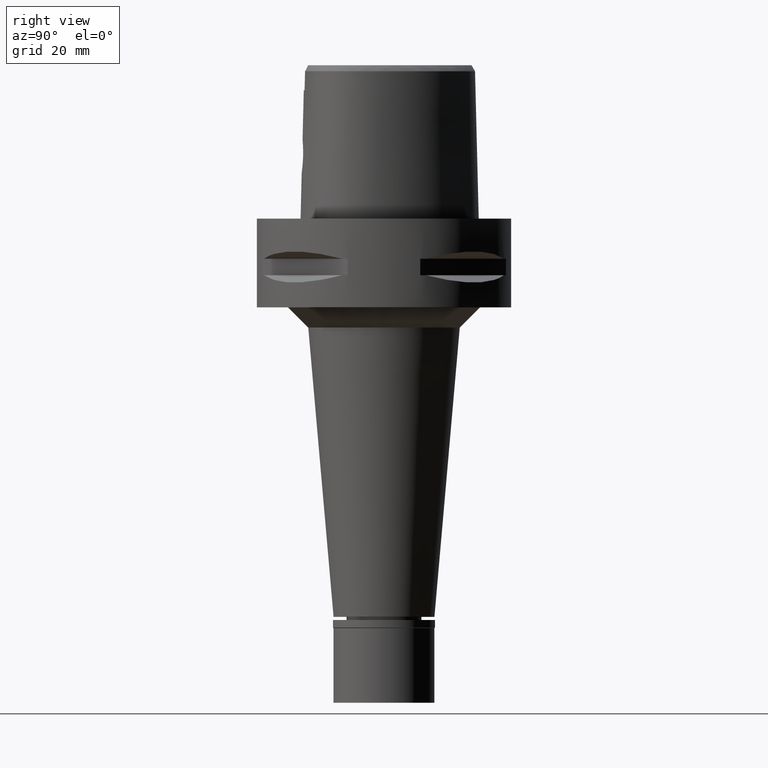
[diagram: clean part render]
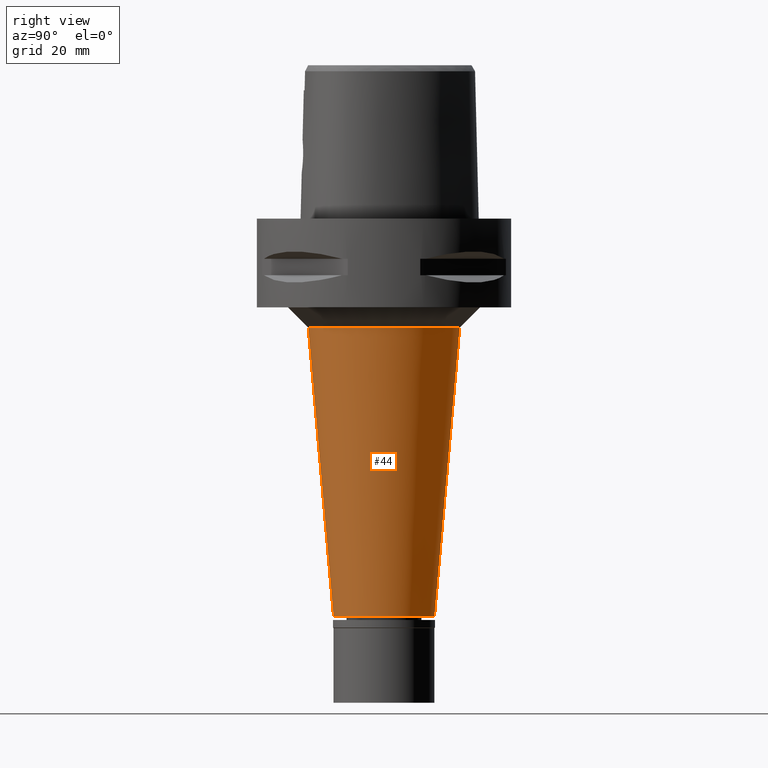
[diagram: same view with one face highlighted and labeled with its STEP entity id]
A machine part, right view. The second image highlights one B-rep face of the part: STEP entity #44.
In plain terms, the highlighted conical surface has half-angle 5 deg.
Its self-contained STEP definition (entity closure, byte-faithful):
#44 = ADVANCED_FACE ( 'NONE', ( #3227 ), #4905, .T. ) ;
#122 = DIRECTION ( 'NONE',  ( 0.0000000000000000000, 0.0000000000000000000, 1.000000000000000000 ) ) ;
#199 = CARTESIAN_POINT ( 'NONE',  ( 0.0000000000000000000, 0.0000000000000000000, -27.00000000000000000 ) ) ;
#242 = DIRECTION ( 'NONE',  ( 0.0000000000000000000, 0.08715574274768382590, -0.9961946980917432137 ) ) ;
#346 = VERTEX_POINT ( 'NONE', #3609 ) ;
#381 = VECTOR ( 'NONE', #4778, 1000.000000000000227 ) ;
#390 = ORIENTED_EDGE ( 'NONE', *, *, #3669, .F. ) ;
#458 = DIRECTION ( 'NONE',  ( 0.0000000000000000000, 1.000000000000000000, 0.0000000000000000000 ) ) ;
#612 = DIRECTION ( 'NONE',  ( 0.0000000000000000000, -1.000000000000000000, 0.0000000000000000000 ) ) ;
#630 = CARTESIAN_POINT ( 'NONE',  ( 0.0000000000000000000, -18.77293717481000002, -27.00000000000000000 ) ) ;
#685 = LINE ( 'NONE', #630, #2954 ) ;
#720 = ORIENTED_EDGE ( 'NONE', *, *, #2663, .T. ) ;
#986 = CARTESIAN_POINT ( 'NONE',  ( 0.0000000000000000000, -12.50000000000000000, -98.70000000000000284 ) ) ;
#1053 = AXIS2_PLACEMENT_3D ( 'NONE', #4176, #1349, #612 ) ;
#1339 = VERTEX_POINT ( 'NONE', #4884 ) ;
#1349 = DIRECTION ( 'NONE',  ( 0.0000000000000000000, 0.0000000000000000000, 1.000000000000000000 ) ) ;
#1472 = CIRCLE ( 'NONE', #1053, 12.50000000000000000 ) ;
#1718 = DIRECTION ( 'NONE',  ( 0.0000000000000000000, -1.000000000000000000, 0.0000000000000000000 ) ) ;
#2007 = VERTEX_POINT ( 'NONE', #986 ) ;
#2107 = CARTESIAN_POINT ( 'NONE',  ( 0.0000000000000000000, 0.0000000000000000000, -62.85000000000000142 ) ) ;
#2381 = AXIS2_PLACEMENT_3D ( 'NONE', #199, #122, #1718 ) ;
#2520 = ORIENTED_EDGE ( 'NONE', *, *, #4922, .F. ) ;
#2575 = EDGE_LOOP ( 'NONE', ( #390, #720, #2654, #2520 ) ) ;
#2654 = ORIENTED_EDGE ( 'NONE', *, *, #4589, .T. ) ;
#2663 = EDGE_CURVE ( 'NONE', #346, #2007, #685, .T. ) ;
#2769 = VERTEX_POINT ( 'NONE', #3286 ) ;
#2954 = VECTOR ( 'NONE', #242, 1000.000000000000227 ) ;
#3213 = LINE ( 'NONE', #4031, #381 ) ;
#3227 = FACE_OUTER_BOUND ( 'NONE', #2575, .T. ) ;
#3286 = CARTESIAN_POINT ( 'NONE',  ( 0.0000000000000000000, 12.50000000000000000, -98.70000000000000284 ) ) ;
#3609 = CARTESIAN_POINT ( 'NONE',  ( 0.0000000000000000000, -18.77293717481000002, -27.00000000000000000 ) ) ;
#3669 = EDGE_CURVE ( 'NONE', #346, #1339, #3954, .T. ) ;
#3954 = CIRCLE ( 'NONE', #2381, 18.77293717479999913 ) ;
#4031 = CARTESIAN_POINT ( 'NONE',  ( 0.0000000000000000000, 18.77293717481000002, -27.00000000000000000 ) ) ;
#4101 = DIRECTION ( 'NONE',  ( 0.0000000000000000000, 0.0000000000000000000, 1.000000000000000000 ) ) ;
#4176 = CARTESIAN_POINT ( 'NONE',  ( 0.0000000000000000000, 0.0000000000000000000, -98.70000000000000284 ) ) ;
#4404 = AXIS2_PLACEMENT_3D ( 'NONE', #2107, #4101, #458 ) ;
#4589 = EDGE_CURVE ( 'NONE', #2007, #2769, #1472, .T. ) ;
#4778 = DIRECTION ( 'NONE',  ( 0.0000000000000000000, -0.08715574274768382590, -0.9961946980917432137 ) ) ;
#4884 = CARTESIAN_POINT ( 'NONE',  ( 0.0000000000000000000, 18.77293717481000002, -27.00000000000000000 ) ) ;
#4905 = CONICAL_SURFACE ( 'NONE', #4404, 15.63646858740000134, 0.08726646259969973729 ) ;
#4922 = EDGE_CURVE ( 'NONE', #1339, #2769, #3213, .T. ) ;